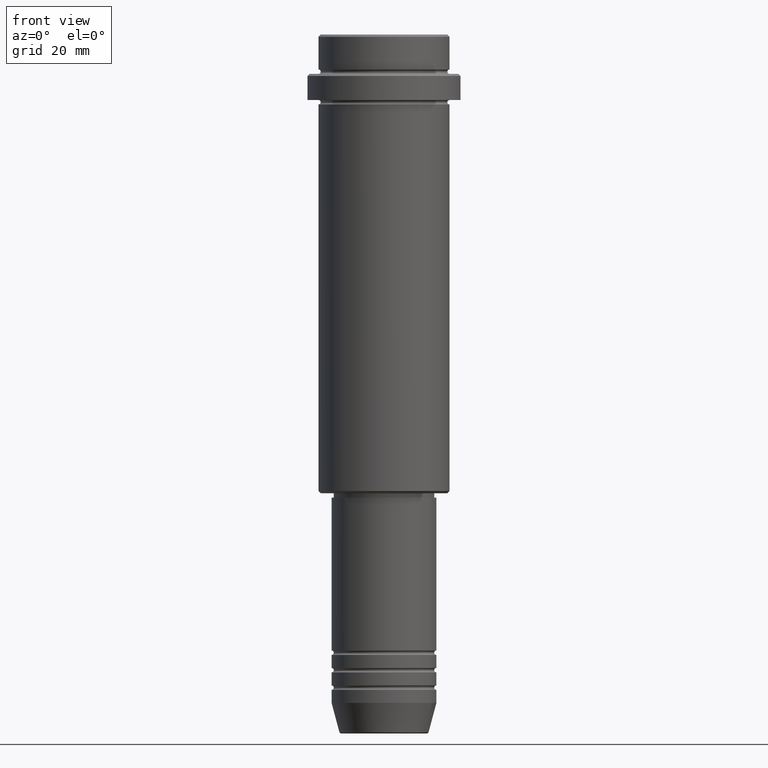
[diagram: clean part render]
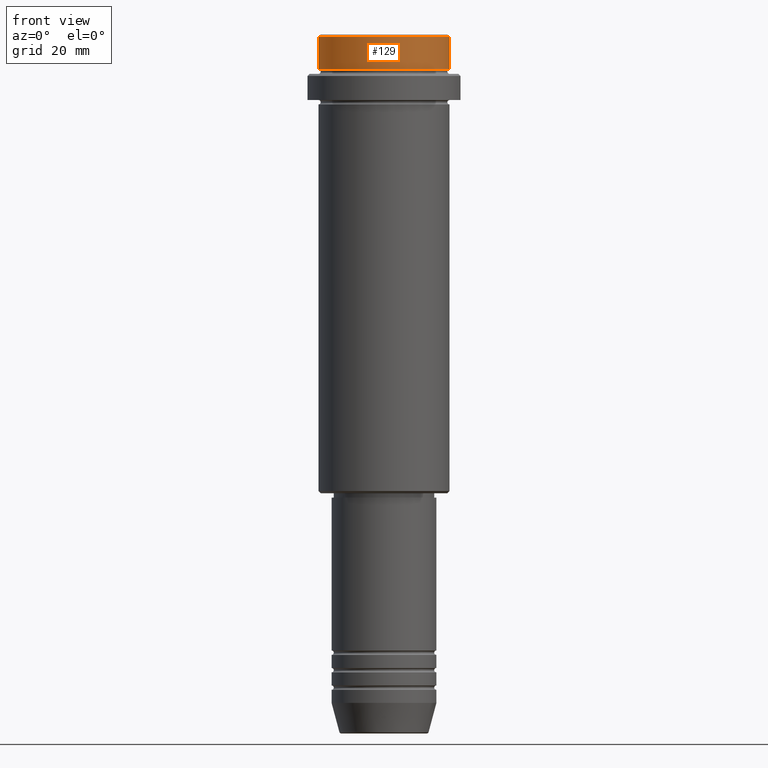
[diagram: same view with one face highlighted and labeled with its STEP entity id]
A machine part, front view. The second image highlights one B-rep face of the part: STEP entity #129.
In plain terms, the highlighted cylindrical surface (partial cylindrical patch) has radius 15 mm, axis along (-0, -0, 1).
Its self-contained STEP definition (entity closure, byte-faithful):
#9 = CARTESIAN_POINT ( 'NONE',  ( -15.00000000000000000, 1.836970198721029589E-15, 0.000000000000000000 ) ) ;
#36 = AXIS2_PLACEMENT_3D ( 'NONE', #430, #1195, #292 ) ;
#123 = AXIS2_PLACEMENT_3D ( 'NONE', #1149, #156, #272 ) ;
#129 = ADVANCED_FACE ( 'NONE', ( #939 ), #1357, .T. ) ;
#140 = VERTEX_POINT ( 'NONE', #285 ) ;
#151 = CIRCLE ( 'NONE', #265, 15.00000000000000000 ) ;
#156 = DIRECTION ( 'NONE',  ( -0.000000000000000000, -0.000000000000000000, 1.000000000000000000 ) ) ;
#219 = VECTOR ( 'NONE', #892, 1000.000000000000000 ) ;
#246 = DIRECTION ( 'NONE',  ( 0.000000000000000000, 0.000000000000000000, -1.000000000000000000 ) ) ;
#262 = CARTESIAN_POINT ( 'NONE',  ( 15.00000000000000000, 0.000000000000000000, 0.000000000000000000 ) ) ;
#265 = AXIS2_PLACEMENT_3D ( 'NONE', #465, #246, #684 ) ;
#272 = DIRECTION ( 'NONE',  ( 1.000000000000000000, 0.000000000000000000, 0.000000000000000000 ) ) ;
#283 = ORIENTED_EDGE ( 'NONE', *, *, #1102, .T. ) ;
#285 = CARTESIAN_POINT ( 'NONE',  ( -15.00000000000000000, 1.836970198721029589E-15, -0.4999999999999970024 ) ) ;
#292 = DIRECTION ( 'NONE',  ( 1.000000000000000000, 0.000000000000000000, 0.000000000000000000 ) ) ;
#327 = VERTEX_POINT ( 'NONE', #879 ) ;
#385 = ORIENTED_EDGE ( 'NONE', *, *, #932, .T. ) ;
#410 = VECTOR ( 'NONE', #1140, 1000.000000000000000 ) ;
#430 = CARTESIAN_POINT ( 'NONE',  ( 0.000000000000000000, 0.000000000000000000, -7.999999999999998224 ) ) ;
#431 = EDGE_CURVE ( 'NONE', #1082, #140, #1101, .T. ) ;
#465 = CARTESIAN_POINT ( 'NONE',  ( 0.000000000000000000, 0.000000000000000000, -0.4999999999999970024 ) ) ;
#484 = EDGE_LOOP ( 'NONE', ( #1209, #857, #283, #385 ) ) ;
#531 = VERTEX_POINT ( 'NONE', #716 ) ;
#677 = CIRCLE ( 'NONE', #36, 15.00000000000000000 ) ;
#684 = DIRECTION ( 'NONE',  ( 1.000000000000000000, 0.000000000000000000, 0.000000000000000000 ) ) ;
#716 = CARTESIAN_POINT ( 'NONE',  ( 15.00000000000000000, 0.000000000000000000, -0.4999999999999970024 ) ) ;
#769 = EDGE_CURVE ( 'NONE', #1082, #327, #677, .T. ) ;
#841 = LINE ( 'NONE', #262, #410 ) ;
#857 = ORIENTED_EDGE ( 'NONE', *, *, #769, .T. ) ;
#879 = CARTESIAN_POINT ( 'NONE',  ( 15.00000000000000000, 0.000000000000000000, -7.999999999999998224 ) ) ;
#892 = DIRECTION ( 'NONE',  ( -0.000000000000000000, -0.000000000000000000, 1.000000000000000000 ) ) ;
#932 = EDGE_CURVE ( 'NONE', #531, #140, #151, .T. ) ;
#939 = FACE_OUTER_BOUND ( 'NONE', #484, .T. ) ;
#1082 = VERTEX_POINT ( 'NONE', #1131 ) ;
#1101 = LINE ( 'NONE', #9, #219 ) ;
#1102 = EDGE_CURVE ( 'NONE', #327, #531, #841, .T. ) ;
#1131 = CARTESIAN_POINT ( 'NONE',  ( -15.00000000000000000, 1.836970198721029589E-15, -7.999999999999998224 ) ) ;
#1140 = DIRECTION ( 'NONE',  ( -0.000000000000000000, -0.000000000000000000, 1.000000000000000000 ) ) ;
#1149 = CARTESIAN_POINT ( 'NONE',  ( 0.000000000000000000, 0.000000000000000000, 0.000000000000000000 ) ) ;
#1195 = DIRECTION ( 'NONE',  ( -0.000000000000000000, -0.000000000000000000, 1.000000000000000000 ) ) ;
#1209 = ORIENTED_EDGE ( 'NONE', *, *, #431, .F. ) ;
#1357 = CYLINDRICAL_SURFACE ( 'NONE', #123, 15.00000000000000000 ) ;